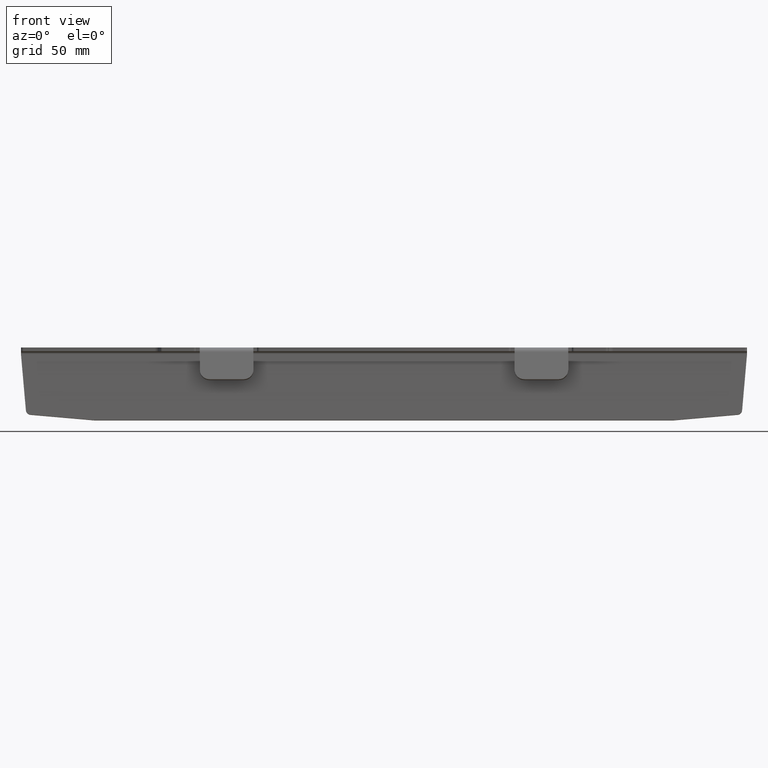
[diagram: clean part render]
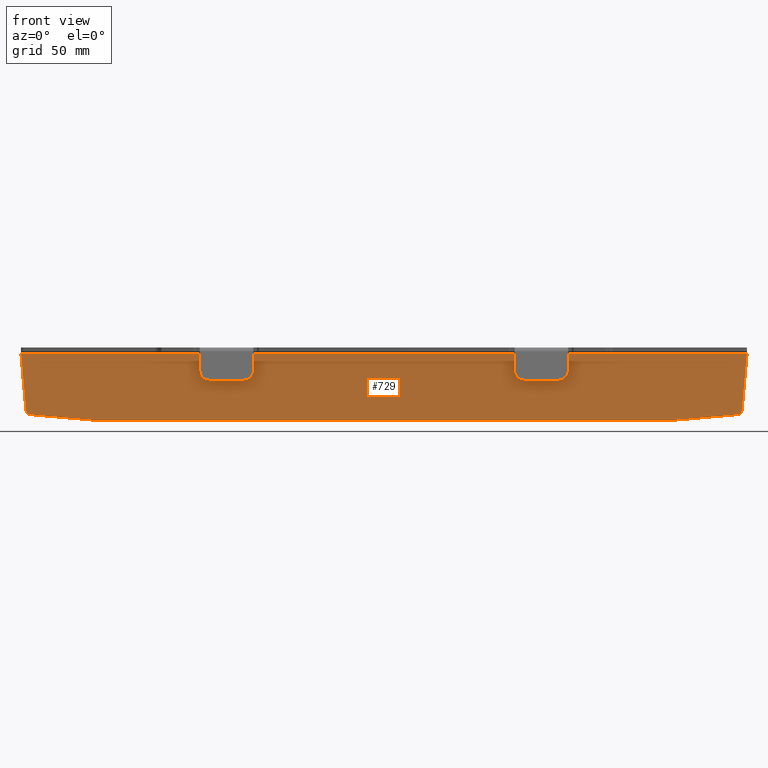
[diagram: same view with one face highlighted and labeled with its STEP entity id]
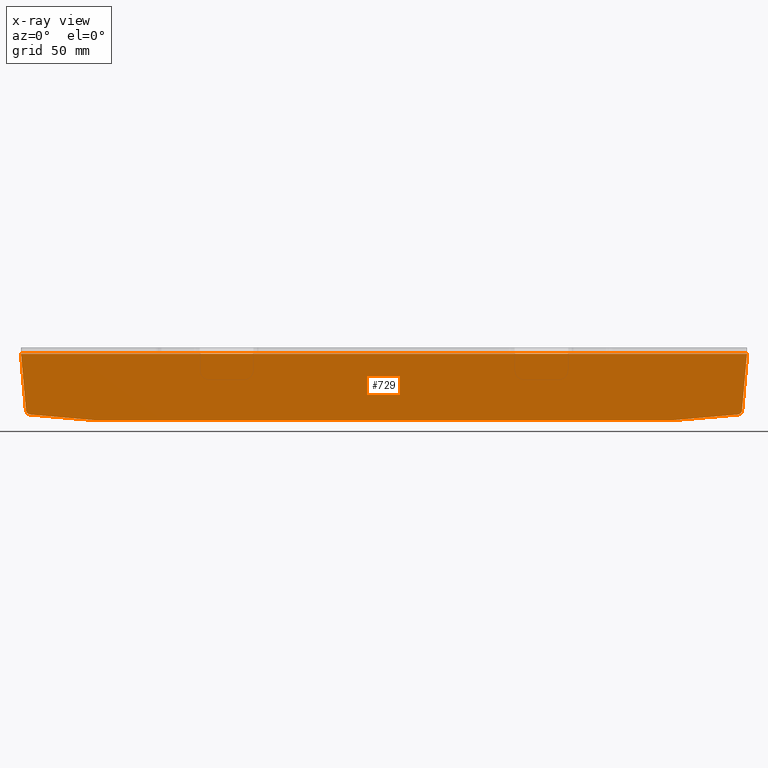
[diagram: x-ray of the same camera — body ghosted, the highlighted face saturated]
A machine part, front view. The second image highlights one B-rep face of the part: STEP entity #729.
The next image is the same camera in x-ray: the body ghosted, the highlighted face saturated — about 0% of this face is hidden behind the body in this view.
In plain terms, the highlighted planar face has unit normal (0, -0.9962, 0.0872).
Its self-contained STEP definition (entity closure, byte-faithful):
#4 = CIRCLE ( 'NONE', #1972, 2.000000000000001300 ) ;
#5 = DIRECTION ( 'NONE',  ( 0.0000000000000000000, -0.08715574274765486300, -0.9961946980917458800 ) ) ;
#23 = EDGE_CURVE ( 'NONE', #1004, #1707, #749, .T. ) ;
#36 = DIRECTION ( 'NONE',  ( 0.0000000000000000000, -0.9961946980917457700, 0.08715574274765484900 ) ) ;
#98 = LINE ( 'NONE', #460, #1923 ) ;
#136 = VERTEX_POINT ( 'NONE', #844 ) ;
#162 = CARTESIAN_POINT ( 'NONE',  ( -145.1519564112343500, 10.38745706878223800, -27.51263624048006000 ) ) ;
#183 = FACE_OUTER_BOUND ( 'NONE', #362, .T. ) ;
#186 = CARTESIAN_POINT ( 'NONE',  ( -119.0869895996782300, 10.18870806204275300, -29.78434778263429900 ) ) ;
#193 = ORIENTED_EDGE ( 'NONE', *, *, #1779, .T. ) ;
#245 = CARTESIAN_POINT ( 'NONE',  ( 148.0051024725984500, 11.57704240332831200, -13.91561364802009000 ) ) ;
#256 = DIRECTION ( 'NONE',  ( 0.0000000000000000000, -0.9961946980917457700, 0.08715574274765484900 ) ) ;
#279 = CARTESIAN_POINT ( 'NONE',  ( 3.411915825591477900, 9.306669493441045700, -39.86609475480500500 ) ) ;
#362 = EDGE_LOOP ( 'NONE', ( #1498, #617, #777, #193, #2159, #1240, #900, #2311, #1006, #2330 ) ) ;
#417 = CARTESIAN_POINT ( 'NONE',  ( 144.9776449257390700, 10.56110524644916300, -25.52782848746784300 ) ) ;
#443 = VECTOR ( 'NONE', #1731, 1000.000000000000200 ) ;
#453 = DIRECTION ( 'NONE',  ( 0.0000000000000000000, -0.08715574274765521000, -0.9961946980917457700 ) ) ;
#460 = CARTESIAN_POINT ( 'NONE',  ( -149.0000000000000000, 12.56815404527024600, -2.587155742747654100 ) ) ;
#464 = DIRECTION ( 'NONE',  ( -0.9961946980917455500, -0.007596123493895701000, -0.08682408883346542900 ) ) ;
#473 = VECTOR ( 'NONE', #1239, 1000.000000000000000 ) ;
#545 = CARTESIAN_POINT ( 'NONE',  ( 0.0000000000000000000, 12.70560194923045600, -1.016119011577479000 ) ) ;
#548 = VERTEX_POINT ( 'NONE', #162 ) ;
#596 = EDGE_CURVE ( 'NONE', #1351, #548, #934, .T. ) ;
#606 = DIRECTION ( 'NONE',  ( 0.0000000000000000000, -0.08715574274765521000, -0.9961946980917457700 ) ) ;
#609 = EDGE_CURVE ( 'NONE', #2408, #1636, #98, .T. ) ;
#617 = ORIENTED_EDGE ( 'NONE', *, *, #596, .T. ) ;
#620 = CARTESIAN_POINT ( 'NONE',  ( -118.9126781141829100, 10.18804475421436900, -29.79192942580558400 ) ) ;
#646 = VECTOR ( 'NONE', #1063, 1000.000000000000000 ) ;
#654 = CARTESIAN_POINT ( 'NONE',  ( -144.9776449257390400, 10.56110524644916100, -25.52782848746785400 ) ) ;
#702 = VERTEX_POINT ( 'NONE', #186 ) ;
#713 = CARTESIAN_POINT ( 'NONE',  ( -3.411915825591478300, 9.306669493441042100, -39.86609475480501200 ) ) ;
#729 = ADVANCED_FACE ( 'NONE', ( #183 ), #1669, .T. ) ;
#749 = CIRCLE ( 'NONE', #810, 2.000000000000001300 ) ;
#777 = ORIENTED_EDGE ( 'NONE', *, *, #1799, .T. ) ;
#810 = AXIS2_PLACEMENT_3D ( 'NONE', #417, #1729, #606 ) ;
#844 = CARTESIAN_POINT ( 'NONE',  ( 119.0869895996781600, 10.18870806204275700, -29.78434778263429900 ) ) ;
#872 = DIRECTION ( 'NONE',  ( 0.0000000000000000000, -0.9961946980917457700, 0.08715574274765484900 ) ) ;
#880 = CARTESIAN_POINT ( 'NONE',  ( 146.9700343219225500, 10.54591299946137200, -25.70147666513477300 ) ) ;
#900 = ORIENTED_EDGE ( 'NONE', *, *, #1428, .F. ) ;
#934 = CIRCLE ( 'NONE', #1783, 2.000000000000001300 ) ;
#1004 = VERTEX_POINT ( 'NONE', #1492 ) ;
#1006 = ORIENTED_EDGE ( 'NONE', *, *, #2088, .F. ) ;
#1035 = CARTESIAN_POINT ( 'NONE',  ( 149.0000000000000300, 12.56815404527024800, -2.587155742747656800 ) ) ;
#1059 = LINE ( 'NONE', #245, #443 ) ;
#1063 = DIRECTION ( 'NONE',  ( -1.000000000000000000, -0.0000000000000000000, -0.0000000000000000000 ) ) ;
#1162 = CARTESIAN_POINT ( 'NONE',  ( 118.9126781141828500, 10.36235623970967800, -27.79954002962209400 ) ) ;
#1201 = VECTOR ( 'NONE', #464, 1000.000000000000000 ) ;
#1239 = DIRECTION ( 'NONE',  ( 0.9961946980917455500, -0.007596123493895701000, -0.08682408883346542900 ) ) ;
#1240 = ORIENTED_EDGE ( 'NONE', *, *, #1349, .T. ) ;
#1246 = VERTEX_POINT ( 'NONE', #620 ) ;
#1349 = EDGE_CURVE ( 'NONE', #1391, #136, #4, .T. ) ;
#1351 = VERTEX_POINT ( 'NONE', #2103 ) ;
#1356 = LINE ( 'NONE', #713, #473 ) ;
#1391 = VERTEX_POINT ( 'NONE', #2344 ) ;
#1428 = EDGE_CURVE ( 'NONE', #1004, #136, #2116, .T. ) ;
#1492 = CARTESIAN_POINT ( 'NONE',  ( 145.1519564112343800, 10.38745706878224200, -27.51263624048004900 ) ) ;
#1498 = ORIENTED_EDGE ( 'NONE', *, *, #2197, .T. ) ;
#1581 = DIRECTION ( 'NONE',  ( 0.0000000000000000000, -0.08715574274765521000, -0.9961946980917457700 ) ) ;
#1617 = LINE ( 'NONE', #2312, #1738 ) ;
#1636 = VERTEX_POINT ( 'NONE', #1035 ) ;
#1669 = PLANE ( 'NONE',  #2368 ) ;
#1707 = VERTEX_POINT ( 'NONE', #880 ) ;
#1715 = EDGE_CURVE ( 'NONE', #1391, #1246, #1935, .T. ) ;
#1729 = DIRECTION ( 'NONE',  ( 0.0000000000000000000, -0.9961946980917457700, 0.08715574274765484900 ) ) ;
#1731 = DIRECTION ( 'NONE',  ( -0.08715574274765836000, -0.08682408883346184900, -0.9924038765061041800 ) ) ;
#1738 = VECTOR ( 'NONE', #2110, 1000.000000000000100 ) ;
#1779 = EDGE_CURVE ( 'NONE', #702, #1246, #1963, .T. ) ;
#1783 = AXIS2_PLACEMENT_3D ( 'NONE', #654, #256, #1581 ) ;
#1799 = EDGE_CURVE ( 'NONE', #548, #702, #1356, .T. ) ;
#1818 = DIRECTION ( 'NONE',  ( 0.0000000000000000000, -0.08715574274765521000, -0.9961946980917457700 ) ) ;
#1844 = CARTESIAN_POINT ( 'NONE',  ( -118.9126781141829100, 10.36235623970967800, -27.79954002962209000 ) ) ;
#1855 = DIRECTION ( 'NONE',  ( 0.0000000000000000000, -0.9961946980917458800, 0.08715574274765486300 ) ) ;
#1902 = AXIS2_PLACEMENT_3D ( 'NONE', #1844, #872, #1818 ) ;
#1923 = VECTOR ( 'NONE', #2153, 1000.000000000000000 ) ;
#1935 = LINE ( 'NONE', #2196, #646 ) ;
#1963 = CIRCLE ( 'NONE', #1902, 2.000000000000001300 ) ;
#1972 = AXIS2_PLACEMENT_3D ( 'NONE', #1162, #36, #453 ) ;
#1978 = CARTESIAN_POINT ( 'NONE',  ( -149.0000000000000000, 12.56815404527024600, -2.587155742747655500 ) ) ;
#2088 = EDGE_CURVE ( 'NONE', #1636, #1707, #1059, .T. ) ;
#2103 = CARTESIAN_POINT ( 'NONE',  ( -146.9700343219225300, 10.54591299946137000, -25.70147666513478100 ) ) ;
#2110 = DIRECTION ( 'NONE',  ( 0.08715574274765837400, -0.08682408883346184900, -0.9924038765061041800 ) ) ;
#2116 = LINE ( 'NONE', #279, #1201 ) ;
#2153 = DIRECTION ( 'NONE',  ( 1.000000000000000000, -1.010844195836927400E-018, -1.155400202835925200E-017 ) ) ;
#2159 = ORIENTED_EDGE ( 'NONE', *, *, #1715, .F. ) ;
#2196 = CARTESIAN_POINT ( 'NONE',  ( -149.0000000000000000, 10.18804475421436900, -29.79192942580558400 ) ) ;
#2197 = EDGE_CURVE ( 'NONE', #2408, #1351, #1617, .T. ) ;
#2311 = ORIENTED_EDGE ( 'NONE', *, *, #23, .T. ) ;
#2312 = CARTESIAN_POINT ( 'NONE',  ( -148.0051024725984200, 11.57704240332831000, -13.91561364802009000 ) ) ;
#2330 = ORIENTED_EDGE ( 'NONE', *, *, #609, .F. ) ;
#2344 = CARTESIAN_POINT ( 'NONE',  ( 118.9126781141828500, 10.18804475421436900, -29.79192942580558400 ) ) ;
#2368 = AXIS2_PLACEMENT_3D ( 'NONE', #545, #1855, #5 ) ;
#2408 = VERTEX_POINT ( 'NONE', #1978 ) ;